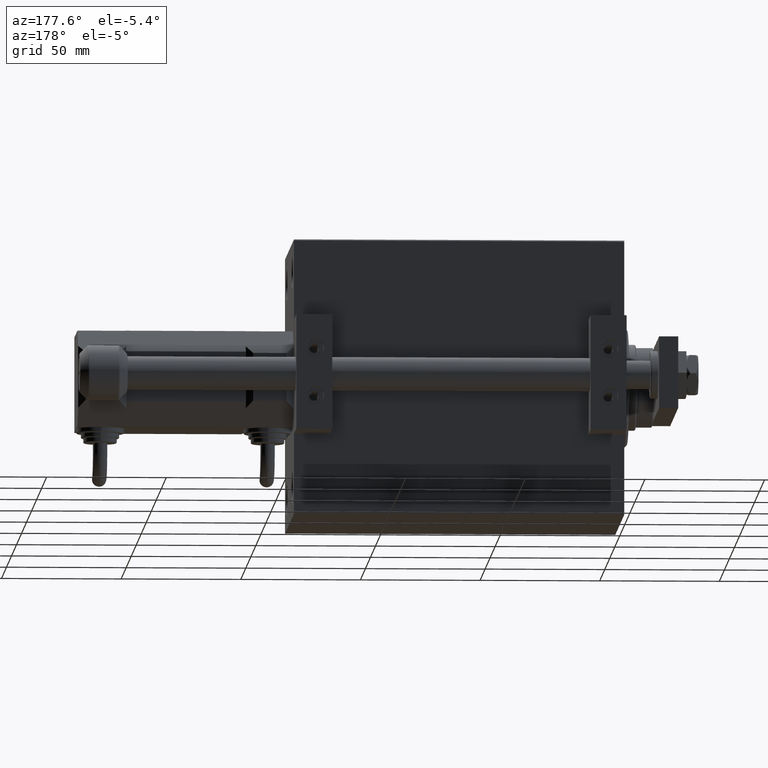
[diagram: clean part render]
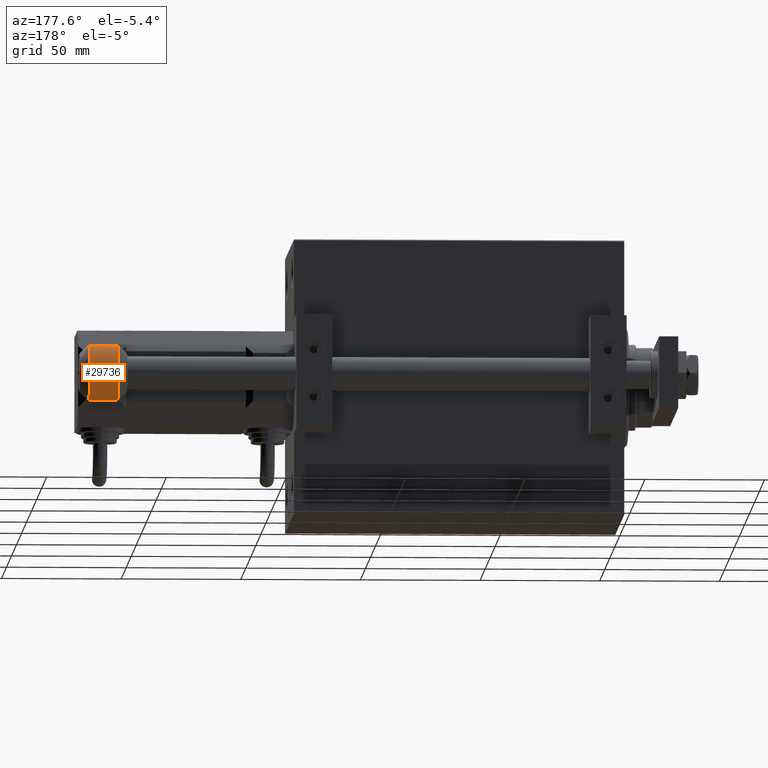
[diagram: same view with one face highlighted and labeled with its STEP entity id]
A machine part, auxiliary view. The second image highlights one B-rep face of the part: STEP entity #29736.
In plain terms, the highlighted cylindrical surface (edge-blend (fillet) strip) has radius 11.5 mm, axis along (1, 0, 0).
Its self-contained STEP definition (entity closure, byte-faithful):
#389 = CARTESIAN_POINT ( 'NONE',  ( 0.000000000000000000, 0.000000000000000000, 3.914213562373095812 ) ) ;
#1491 = CARTESIAN_POINT ( 'NONE',  ( 11.49999999999999822, 1.408343819019455979E-15, 20.00000000000000000 ) ) ;
#5174 = DIRECTION ( 'NONE',  ( -0.000000000000000000, -0.000000000000000000, 1.000000000000000000 ) ) ;
#5873 = CARTESIAN_POINT ( 'NONE',  ( 11.49999999999999822, 1.408343819019455979E-15, 16.08578643762689708 ) ) ;
#6416 = DIRECTION ( 'NONE',  ( 1.000000000000000000, 0.000000000000000000, 0.000000000000000000 ) ) ;
#7429 = EDGE_CURVE ( 'NONE', #20447, #30970, #17917, .T. ) ;
#8325 = CARTESIAN_POINT ( 'NONE',  ( 0.000000000000000000, 0.000000000000000000, 20.00000000000000000 ) ) ;
#8530 = CIRCLE ( 'NONE', #12559, 11.49999999999999822 ) ;
#10998 = AXIS2_PLACEMENT_3D ( 'NONE', #8325, #39167, #38160 ) ;
#12559 = AXIS2_PLACEMENT_3D ( 'NONE', #389, #5174, #12744 ) ;
#12744 = DIRECTION ( 'NONE',  ( -1.000000000000000000, 0.000000000000000000, 0.000000000000000000 ) ) ;
#13503 = DIRECTION ( 'NONE',  ( 0.000000000000000000, 0.000000000000000000, -1.000000000000000000 ) ) ;
#17914 = EDGE_CURVE ( 'NONE', #30970, #31441, #36883, .T. ) ;
#17917 = CIRCLE ( 'NONE', #25180, 11.49999999999999822 ) ;
#19300 = ORIENTED_EDGE ( 'NONE', *, *, #28202, .T. ) ;
#20447 = VERTEX_POINT ( 'NONE', #5873 ) ;
#24976 = DIRECTION ( 'NONE',  ( -0.000000000000000000, -0.000000000000000000, -1.000000000000000000 ) ) ;
#25180 = AXIS2_PLACEMENT_3D ( 'NONE', #48146, #13503, #6416 ) ;
#27779 = FACE_OUTER_BOUND ( 'NONE', #31817, .T. ) ;
#28202 = EDGE_CURVE ( 'NONE', #31441, #43357, #8530, .T. ) ;
#28798 = CARTESIAN_POINT ( 'NONE',  ( -11.49999999999999822, 0.000000000000000000, 20.00000000000000000 ) ) ;
#29736 = ADVANCED_FACE ( 'NONE', ( #27779 ), #42944, .T. ) ;
#30970 = VERTEX_POINT ( 'NONE', #47939 ) ;
#31441 = VERTEX_POINT ( 'NONE', #47081 ) ;
#31817 = EDGE_LOOP ( 'NONE', ( #32433, #37785, #44981, #19300 ) ) ;
#32433 = ORIENTED_EDGE ( 'NONE', *, *, #45486, .F. ) ;
#35919 = CARTESIAN_POINT ( 'NONE',  ( 11.49999999999999822, 1.408343819019455979E-15, 3.914213562373095812 ) ) ;
#36883 = LINE ( 'NONE', #28798, #40605 ) ;
#37785 = ORIENTED_EDGE ( 'NONE', *, *, #7429, .T. ) ;
#38160 = DIRECTION ( 'NONE',  ( -1.000000000000000000, 0.000000000000000000, 0.000000000000000000 ) ) ;
#39167 = DIRECTION ( 'NONE',  ( -0.000000000000000000, -0.000000000000000000, -1.000000000000000000 ) ) ;
#40605 = VECTOR ( 'NONE', #44210, 1000.000000000000000 ) ;
#40753 = VECTOR ( 'NONE', #24976, 1000.000000000000000 ) ;
#42944 = CYLINDRICAL_SURFACE ( 'NONE', #10998, 11.49999999999999822 ) ;
#43194 = LINE ( 'NONE', #1491, #40753 ) ;
#43357 = VERTEX_POINT ( 'NONE', #35919 ) ;
#44210 = DIRECTION ( 'NONE',  ( -0.000000000000000000, -0.000000000000000000, -1.000000000000000000 ) ) ;
#44981 = ORIENTED_EDGE ( 'NONE', *, *, #17914, .T. ) ;
#45486 = EDGE_CURVE ( 'NONE', #20447, #43357, #43194, .T. ) ;
#47081 = CARTESIAN_POINT ( 'NONE',  ( -11.49999999999999822, 0.000000000000000000, 3.914213562373095812 ) ) ;
#47939 = CARTESIAN_POINT ( 'NONE',  ( -11.49999999999999822, 0.000000000000000000, 16.08578643762689708 ) ) ;
#48146 = CARTESIAN_POINT ( 'NONE',  ( 0.000000000000000000, 0.000000000000000000, 16.08578643762689708 ) ) ;